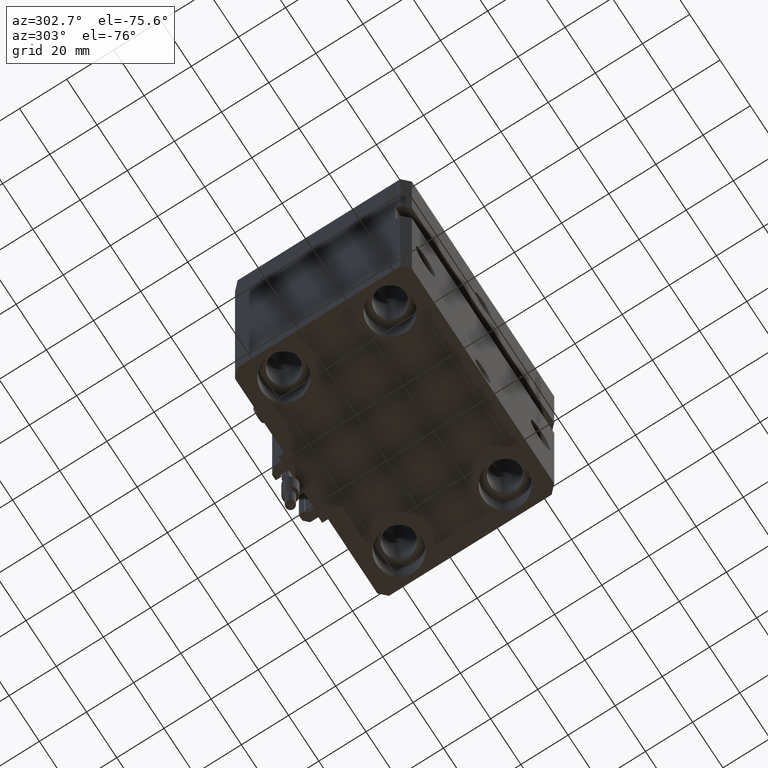
[diagram: clean part render]
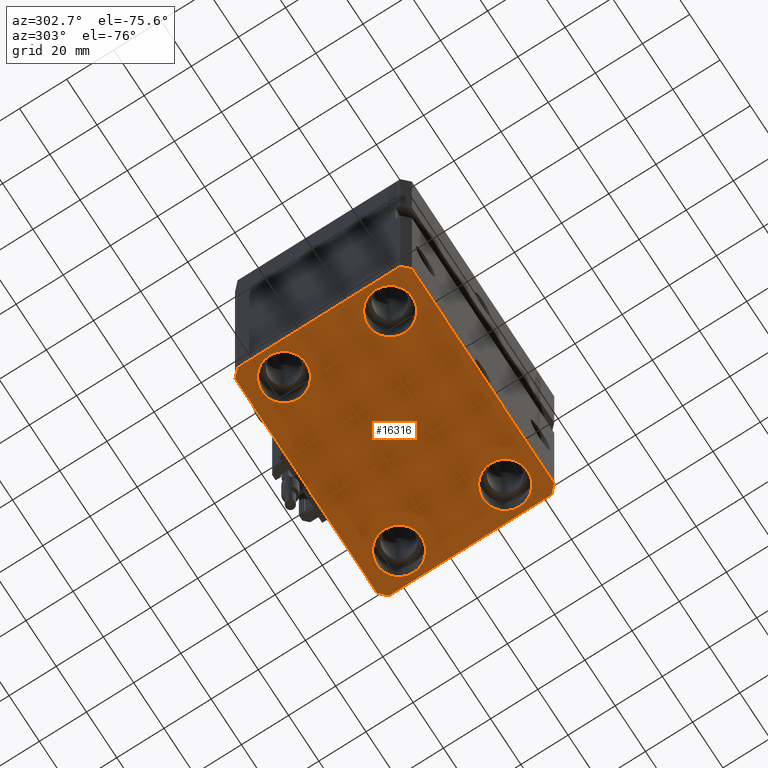
[diagram: same view with one face highlighted and labeled with its STEP entity id]
A machine part, auxiliary view. The second image highlights one B-rep face of the part: STEP entity #16316.
In plain terms, the highlighted planar face has unit normal (0, 0, 1).
Its self-contained STEP definition (entity closure, byte-faithful):
#344 = CARTESIAN_POINT ( 'NONE',  ( -28.50000000000000355, 22.50000000000000000, -125.0000000000000000 ) ) ;
#782 = VERTEX_POINT ( 'NONE', #32036 ) ;
#875 = ORIENTED_EDGE ( 'NONE', *, *, #15177, .T. ) ;
#965 = ORIENTED_EDGE ( 'NONE', *, *, #47788, .T. ) ;
#1333 = EDGE_CURVE ( 'NONE', #40582, #4167, #45071, .T. ) ;
#2134 = CARTESIAN_POINT ( 'NONE',  ( 47.00000000000000000, -37.50000000000000711, -125.0000000000000000 ) ) ;
#2372 = CARTESIAN_POINT ( 'NONE',  ( 50.00000000000051870, 34.49999999999995026, -125.0000000000000000 ) ) ;
#2577 = EDGE_CURVE ( 'NONE', #34329, #23192, #16171, .T. ) ;
#2629 = CARTESIAN_POINT ( 'NONE',  ( -47.00000000000001421, 37.50000000000000000, -125.0000000000000000 ) ) ;
#2965 = AXIS2_PLACEMENT_3D ( 'NONE', #50329, #34431, #50063 ) ;
#4142 = DIRECTION ( 'NONE',  ( 7.441712302741091634E-15, 1.000000000000000000, 0.000000000000000000 ) ) ;
#4167 = VERTEX_POINT ( 'NONE', #344 ) ;
#4359 = EDGE_LOOP ( 'NONE', ( #25685, #13886, #38512, #14588, #25072, #39035, #8167, #16509 ) ) ;
#4657 = LINE ( 'NONE', #31818, #24852 ) ;
#4711 = CARTESIAN_POINT ( 'NONE',  ( -50.00000000000001421, 34.50000000000000000, -125.0000000000000000 ) ) ;
#4967 = AXIS2_PLACEMENT_3D ( 'NONE', #49449, #23210, #37406 ) ;
#5412 = CARTESIAN_POINT ( 'NONE',  ( -47.00000000000000000, -37.49999999999999289, -125.0000000000000000 ) ) ;
#5722 = VERTEX_POINT ( 'NONE', #11375 ) ;
#5934 = DIRECTION ( 'NONE',  ( 1.000000000000000000, -1.476360405086644309E-16, 0.000000000000000000 ) ) ;
#6159 = CIRCLE ( 'NONE', #27408, 9.500000000000001776 ) ;
#7099 = EDGE_LOOP ( 'NONE', ( #35741, #965 ) ) ;
#7855 = EDGE_CURVE ( 'NONE', #19250, #782, #50203, .T. ) ;
#8167 = ORIENTED_EDGE ( 'NONE', *, *, #20615, .F. ) ;
#8473 = LINE ( 'NONE', #39262, #50578 ) ;
#9119 = VERTEX_POINT ( 'NONE', #4711 ) ;
#10211 = EDGE_LOOP ( 'NONE', ( #22437, #49353 ) ) ;
#10398 = DIRECTION ( 'NONE',  ( 0.7071067811865491270, -0.7071067811865459074, 0.000000000000000000 ) ) ;
#11103 = CARTESIAN_POINT ( 'NONE',  ( 38.00000000000000711, 22.50000000000001421, -125.0000000000000000 ) ) ;
#11158 = DIRECTION ( 'NONE',  ( -0.000000000000000000, -0.000000000000000000, 1.000000000000000000 ) ) ;
#11375 = CARTESIAN_POINT ( 'NONE',  ( 50.00000000000000000, -34.50000000000000711, -125.0000000000000000 ) ) ;
#11899 = AXIS2_PLACEMENT_3D ( 'NONE', #24933, #36487, #32633 ) ;
#12187 = DIRECTION ( 'NONE',  ( -0.000000000000000000, -0.000000000000000000, 1.000000000000000000 ) ) ;
#12558 = VECTOR ( 'NONE', #5934, 1000.000000000000000 ) ;
#12871 = LINE ( 'NONE', #36459, #12558 ) ;
#13886 = ORIENTED_EDGE ( 'NONE', *, *, #37000, .F. ) ;
#13904 = DIRECTION ( 'NONE',  ( -0.7071067811865483499, -0.7071067811865466846, 0.000000000000000000 ) ) ;
#14588 = ORIENTED_EDGE ( 'NONE', *, *, #49009, .F. ) ;
#15177 = EDGE_CURVE ( 'NONE', #31674, #17126, #43020, .T. ) ;
#15288 = EDGE_CURVE ( 'NONE', #23192, #9119, #33638, .T. ) ;
#15298 = CARTESIAN_POINT ( 'NONE',  ( -47.50000000000000711, -22.50000000000000000, -125.0000000000000000 ) ) ;
#15439 = DIRECTION ( 'NONE',  ( -0.000000000000000000, -0.000000000000000000, 1.000000000000000000 ) ) ;
#15461 = CARTESIAN_POINT ( 'NONE',  ( 47.50000000000000711, -22.50000000000000000, -125.0000000000000000 ) ) ;
#15585 = CARTESIAN_POINT ( 'NONE',  ( -28.50000000000000355, -22.50000000000000000, -125.0000000000000000 ) ) ;
#16171 = LINE ( 'NONE', #39011, #31180 ) ;
#16316 = ADVANCED_FACE ( 'NONE', ( #38158, #22018, #30207, #22259, #17919 ), #37156, .F. ) ;
#16417 = DIRECTION ( 'NONE',  ( -1.000000000000000000, 7.381802025433175941E-17, 0.000000000000000000 ) ) ;
#16509 = ORIENTED_EDGE ( 'NONE', *, *, #15288, .F. ) ;
#16876 = VERTEX_POINT ( 'NONE', #2372 ) ;
#16923 = CARTESIAN_POINT ( 'NONE',  ( 28.50000000000000355, 22.50000000000001421, -125.0000000000000000 ) ) ;
#17126 = VERTEX_POINT ( 'NONE', #16923 ) ;
#17713 = ORIENTED_EDGE ( 'NONE', *, *, #7855, .T. ) ;
#17919 = FACE_OUTER_BOUND ( 'NONE', #4359, .T. ) ;
#18285 = CIRCLE ( 'NONE', #48622, 9.500000000000001776 ) ;
#19250 = VERTEX_POINT ( 'NONE', #15461 ) ;
#19546 = VECTOR ( 'NONE', #29733, 1000.000000000000114 ) ;
#19564 = DIRECTION ( 'NONE',  ( -0.000000000000000000, -0.000000000000000000, 1.000000000000000000 ) ) ;
#20615 = EDGE_CURVE ( 'NONE', #9119, #44682, #4657, .T. ) ;
#20688 = DIRECTION ( 'NONE',  ( 1.000000000000000000, 0.000000000000000000, 0.000000000000000000 ) ) ;
#21417 = CIRCLE ( 'NONE', #30397, 9.500000000000001776 ) ;
#21684 = CARTESIAN_POINT ( 'NONE',  ( -50.00000000000000000, -34.50000000000000000, -125.0000000000000000 ) ) ;
#21848 = LINE ( 'NONE', #2134, #34091 ) ;
#22018 = FACE_BOUND ( 'NONE', #41008, .T. ) ;
#22259 = FACE_BOUND ( 'NONE', #7099, .T. ) ;
#22437 = ORIENTED_EDGE ( 'NONE', *, *, #26208, .T. ) ;
#22461 = EDGE_CURVE ( 'NONE', #44682, #32634, #37578, .T. ) ;
#22946 = EDGE_CURVE ( 'NONE', #32634, #26161, #12871, .T. ) ;
#23192 = VERTEX_POINT ( 'NONE', #25774 ) ;
#23210 = DIRECTION ( 'NONE',  ( -0.000000000000000000, -0.000000000000000000, 1.000000000000000000 ) ) ;
#23284 = EDGE_CURVE ( 'NONE', #782, #19250, #18285, .T. ) ;
#23557 = ORIENTED_EDGE ( 'NONE', *, *, #23284, .T. ) ;
#24852 = VECTOR ( 'NONE', #28215, 1000.000000000000000 ) ;
#24933 = CARTESIAN_POINT ( 'NONE',  ( 38.00000000000000711, 22.50000000000001421, -125.0000000000000000 ) ) ;
#25072 = ORIENTED_EDGE ( 'NONE', *, *, #22946, .F. ) ;
#25372 = CARTESIAN_POINT ( 'NONE',  ( 50.00000000000051870, 34.49999999999995026, -125.0000000000000000 ) ) ;
#25685 = ORIENTED_EDGE ( 'NONE', *, *, #2577, .F. ) ;
#25774 = CARTESIAN_POINT ( 'NONE',  ( -47.00000000000001421, 37.50000000000000000, -125.0000000000000000 ) ) ;
#25812 = AXIS2_PLACEMENT_3D ( 'NONE', #50572, #15439, #46720 ) ;
#26161 = VERTEX_POINT ( 'NONE', #32485 ) ;
#26208 = EDGE_CURVE ( 'NONE', #49206, #41841, #6159, .T. ) ;
#26346 = CARTESIAN_POINT ( 'NONE',  ( 0.000000000000000000, 0.000000000000000000, -125.0000000000000000 ) ) ;
#26371 = LINE ( 'NONE', #25372, #19546 ) ;
#27408 = AXIS2_PLACEMENT_3D ( 'NONE', #36587, #47875, #20688 ) ;
#28215 = DIRECTION ( 'NONE',  ( 2.011273595335428326E-16, -1.000000000000000000, 0.000000000000000000 ) ) ;
#28527 = EDGE_LOOP ( 'NONE', ( #47481, #875 ) ) ;
#29073 = CIRCLE ( 'NONE', #25812, 9.500000000000001776 ) ;
#29733 = DIRECTION ( 'NONE',  ( -0.7071067811865361374, 0.7071067811865588970, 0.000000000000000000 ) ) ;
#30207 = FACE_BOUND ( 'NONE', #28527, .T. ) ;
#30382 = CARTESIAN_POINT ( 'NONE',  ( 38.00000000000000711, -22.50000000000000000, -125.0000000000000000 ) ) ;
#30397 = AXIS2_PLACEMENT_3D ( 'NONE', #11103, #19564, #42906 ) ;
#31180 = VECTOR ( 'NONE', #16417, 1000.000000000000000 ) ;
#31674 = VERTEX_POINT ( 'NONE', #35285 ) ;
#31818 = CARTESIAN_POINT ( 'NONE',  ( -50.00000000000001421, 34.50000000000000000, -125.0000000000000000 ) ) ;
#32036 = CARTESIAN_POINT ( 'NONE',  ( 28.50000000000000355, -22.50000000000000000, -125.0000000000000000 ) ) ;
#32485 = CARTESIAN_POINT ( 'NONE',  ( 47.00000000000000000, -37.50000000000000711, -125.0000000000000000 ) ) ;
#32551 = EDGE_CURVE ( 'NONE', #5722, #16876, #8473, .T. ) ;
#32633 = DIRECTION ( 'NONE',  ( 1.000000000000000000, 0.000000000000000000, 0.000000000000000000 ) ) ;
#32634 = VERTEX_POINT ( 'NONE', #5412 ) ;
#33026 = AXIS2_PLACEMENT_3D ( 'NONE', #30382, #12187, #46803 ) ;
#33638 = LINE ( 'NONE', #2629, #50391 ) ;
#34091 = VECTOR ( 'NONE', #45690, 1000.000000000000000 ) ;
#34329 = VERTEX_POINT ( 'NONE', #43700 ) ;
#34431 = DIRECTION ( 'NONE',  ( -0.000000000000000000, -0.000000000000000000, 1.000000000000000000 ) ) ;
#34481 = CARTESIAN_POINT ( 'NONE',  ( 38.00000000000000711, -22.50000000000000000, -125.0000000000000000 ) ) ;
#35285 = CARTESIAN_POINT ( 'NONE',  ( 47.50000000000000711, 22.50000000000001421, -125.0000000000000000 ) ) ;
#35741 = ORIENTED_EDGE ( 'NONE', *, *, #1333, .T. ) ;
#35996 = CARTESIAN_POINT ( 'NONE',  ( -47.50000000000000711, 22.50000000000000000, -125.0000000000000000 ) ) ;
#36459 = CARTESIAN_POINT ( 'NONE',  ( -47.00000000000000000, -37.49999999999999289, -125.0000000000000000 ) ) ;
#36487 = DIRECTION ( 'NONE',  ( -0.000000000000000000, -0.000000000000000000, 1.000000000000000000 ) ) ;
#36587 = CARTESIAN_POINT ( 'NONE',  ( -38.00000000000000711, -22.50000000000000000, -125.0000000000000000 ) ) ;
#37000 = EDGE_CURVE ( 'NONE', #16876, #34329, #26371, .T. ) ;
#37156 = PLANE ( 'NONE',  #39467 ) ;
#37406 = DIRECTION ( 'NONE',  ( 1.000000000000000000, 0.000000000000000000, 0.000000000000000000 ) ) ;
#37578 = LINE ( 'NONE', #21684, #37905 ) ;
#37905 = VECTOR ( 'NONE', #10398, 1000.000000000000114 ) ;
#38158 = FACE_BOUND ( 'NONE', #10211, .T. ) ;
#38512 = ORIENTED_EDGE ( 'NONE', *, *, #32551, .F. ) ;
#39011 = CARTESIAN_POINT ( 'NONE',  ( 47.00000000000056843, 37.49999999999999289, -125.0000000000000000 ) ) ;
#39035 = ORIENTED_EDGE ( 'NONE', *, *, #22461, .F. ) ;
#39113 = DIRECTION ( 'NONE',  ( 1.000000000000000000, 0.000000000000000000, 0.000000000000000000 ) ) ;
#39262 = CARTESIAN_POINT ( 'NONE',  ( 50.00000000000000000, -34.50000000000000711, -125.0000000000000000 ) ) ;
#39467 = AXIS2_PLACEMENT_3D ( 'NONE', #26346, #48966, #41005 ) ;
#40582 = VERTEX_POINT ( 'NONE', #35996 ) ;
#41005 = DIRECTION ( 'NONE',  ( 1.000000000000000000, 0.000000000000000000, -0.000000000000000000 ) ) ;
#41008 = EDGE_LOOP ( 'NONE', ( #23557, #17713 ) ) ;
#41225 = EDGE_CURVE ( 'NONE', #17126, #31674, #21417, .T. ) ;
#41841 = VERTEX_POINT ( 'NONE', #15585 ) ;
#42906 = DIRECTION ( 'NONE',  ( 1.000000000000000000, 0.000000000000000000, 0.000000000000000000 ) ) ;
#43020 = CIRCLE ( 'NONE', #11899, 9.500000000000001776 ) ;
#43700 = CARTESIAN_POINT ( 'NONE',  ( 47.00000000000056843, 37.49999999999999289, -125.0000000000000000 ) ) ;
#44455 = CARTESIAN_POINT ( 'NONE',  ( -50.00000000000000000, -34.50000000000000000, -125.0000000000000000 ) ) ;
#44682 = VERTEX_POINT ( 'NONE', #44455 ) ;
#45071 = CIRCLE ( 'NONE', #4967, 9.500000000000001776 ) ;
#45562 = CIRCLE ( 'NONE', #2965, 9.500000000000001776 ) ;
#45690 = DIRECTION ( 'NONE',  ( 0.7071067811865483499, 0.7071067811865466846, 0.000000000000000000 ) ) ;
#45914 = EDGE_CURVE ( 'NONE', #41841, #49206, #29073, .T. ) ;
#46720 = DIRECTION ( 'NONE',  ( 1.000000000000000000, 0.000000000000000000, 0.000000000000000000 ) ) ;
#46803 = DIRECTION ( 'NONE',  ( 1.000000000000000000, 0.000000000000000000, 0.000000000000000000 ) ) ;
#47481 = ORIENTED_EDGE ( 'NONE', *, *, #41225, .T. ) ;
#47788 = EDGE_CURVE ( 'NONE', #4167, #40582, #45562, .T. ) ;
#47875 = DIRECTION ( 'NONE',  ( -0.000000000000000000, -0.000000000000000000, 1.000000000000000000 ) ) ;
#48622 = AXIS2_PLACEMENT_3D ( 'NONE', #34481, #11158, #39113 ) ;
#48966 = DIRECTION ( 'NONE',  ( 0.000000000000000000, 0.000000000000000000, 1.000000000000000000 ) ) ;
#49009 = EDGE_CURVE ( 'NONE', #26161, #5722, #21848, .T. ) ;
#49206 = VERTEX_POINT ( 'NONE', #15298 ) ;
#49353 = ORIENTED_EDGE ( 'NONE', *, *, #45914, .T. ) ;
#49449 = CARTESIAN_POINT ( 'NONE',  ( -38.00000000000000711, 22.50000000000000000, -125.0000000000000000 ) ) ;
#50063 = DIRECTION ( 'NONE',  ( 1.000000000000000000, 0.000000000000000000, 0.000000000000000000 ) ) ;
#50203 = CIRCLE ( 'NONE', #33026, 9.500000000000001776 ) ;
#50329 = CARTESIAN_POINT ( 'NONE',  ( -38.00000000000000711, 22.50000000000000000, -125.0000000000000000 ) ) ;
#50391 = VECTOR ( 'NONE', #13904, 1000.000000000000000 ) ;
#50572 = CARTESIAN_POINT ( 'NONE',  ( -38.00000000000000711, -22.50000000000000000, -125.0000000000000000 ) ) ;
#50578 = VECTOR ( 'NONE', #4142, 1000.000000000000000 ) ;